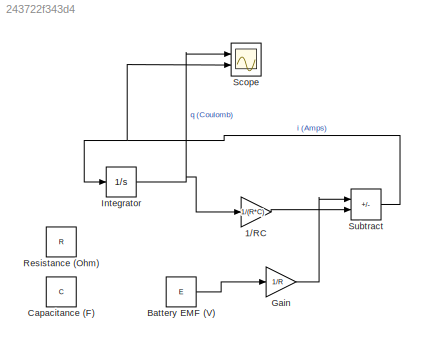
MODEL slx_243722f343d4
KIND model
CONFIG AbsTol = auto
CONFIG EnableMultiTasking = off
CONFIG FixedStep = auto
CONFIG MaxStep = auto
CONFIG MinStep = auto
CONFIG RelTol = 1e-3
CONFIG SampleTimeConstraint = Unconstrained
CONFIG SolverName = VariableStepAuto
CONFIG StartTime = 0.0
CONFIG StopTime = 10.0
BLOCK [Gain] 1//RC
  Gain = 1/(R*C)
BLOCK [Constant] Battery EMF (V)
  Value = E
BLOCK [Constant] Capacitance (F)
  Value = C
BLOCK [Gain] Gain
  Gain = 1/R
BLOCK [Integrator] Integrator
  Ports = [1, 1]
BLOCK [Constant] Resistance (Ohm)
  Value = R
BLOCK [Scope] Scope
  Floating = off
  NumInputPorts = 2
  Ports = [2]
  ScopeSpecificationString = Simulink.scopes.TimeScopeBlockCfg('CurrentConfiguration', extmgr.ConfigurationSet(extmgr.Configuration('Core','General UI',true),extmgr.Configuration('Core','Source UI',true),extmgr.Configuration('Sources','WiredSimulink',true,'DataLoggingVariableName','ScopeData1'),extmgr.Configuration('Visuals','Time Domain',true,'SerializedDisplays',{struct('MinYLimReal','-0.0015','MaxYLimReal','0.0135','YLabel...<+1503ch>
BLOCK [Sum] Subtract
  IconShape = rectangular
  Inputs = +-
  Ports = [2, 1]
LINE 1//RC:1 -> Subtract:2
LINE Battery EMF (V):1 -> Gain:1
LINE Gain:1 -> Subtract:1
NET Integrator:1 -> 1//RC:1, Scope:1
NET Subtract:1 -> Integrator:1, Scope:2
note: NET lines group one-source signal fan-out (src -> all destinations, sorted); 1:1 wires keep LINE
